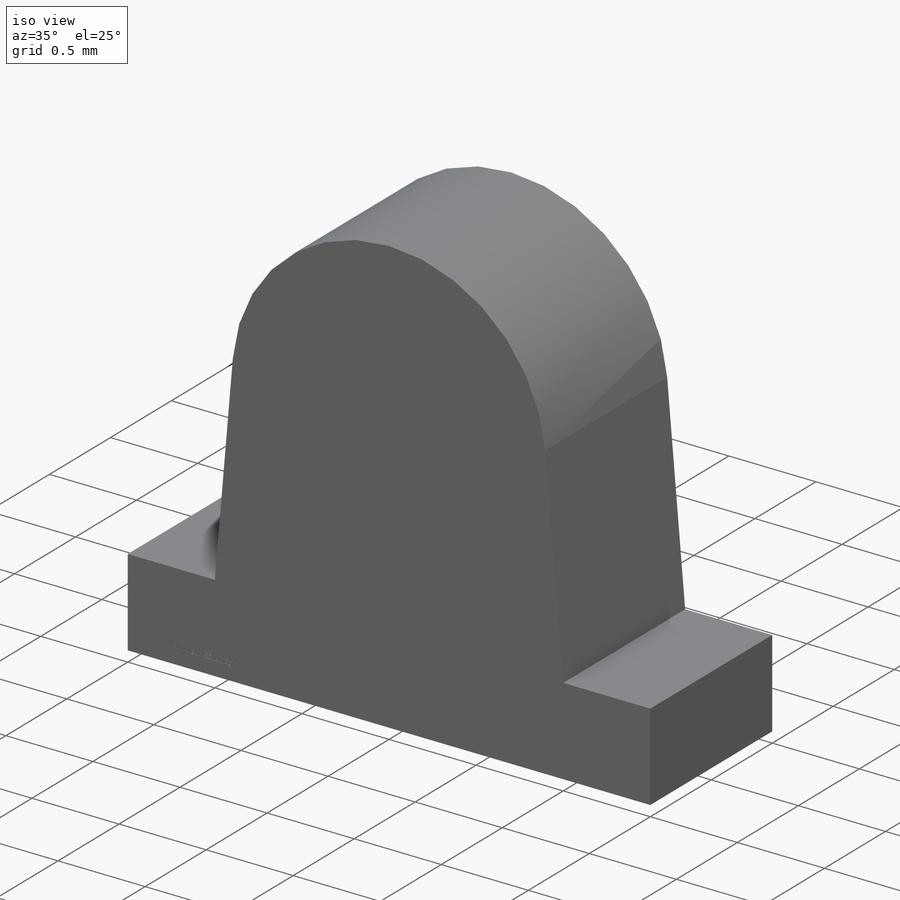
[diagram: iso view]
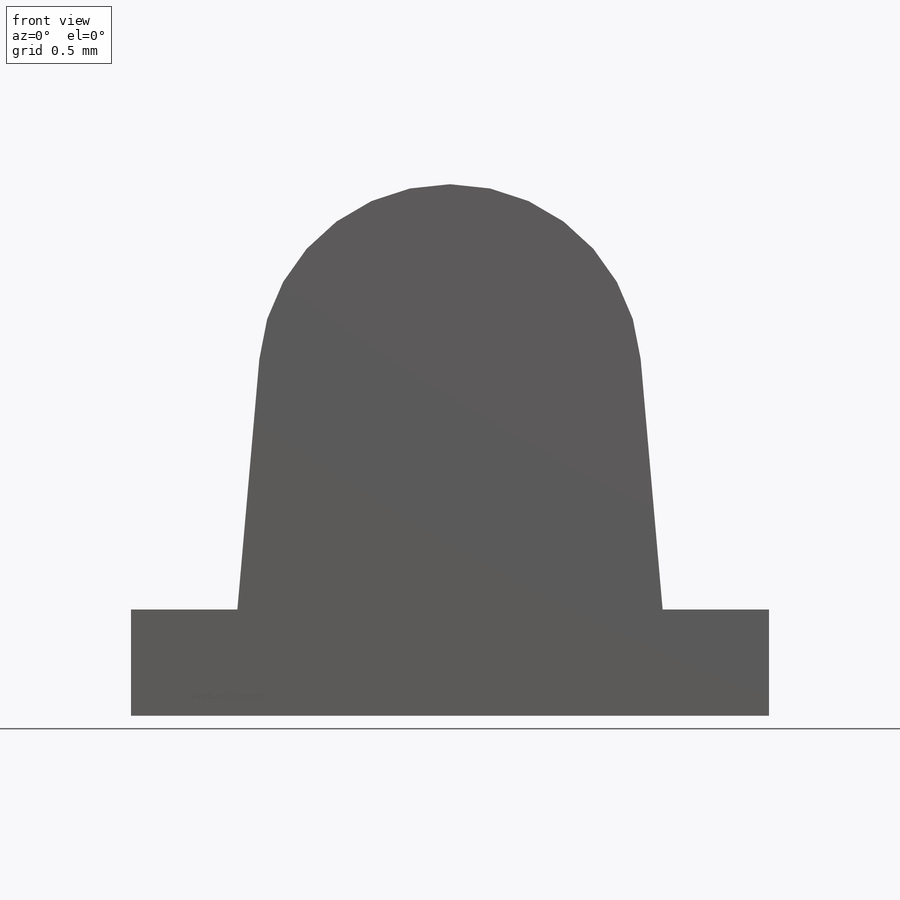
[diagram: front view]
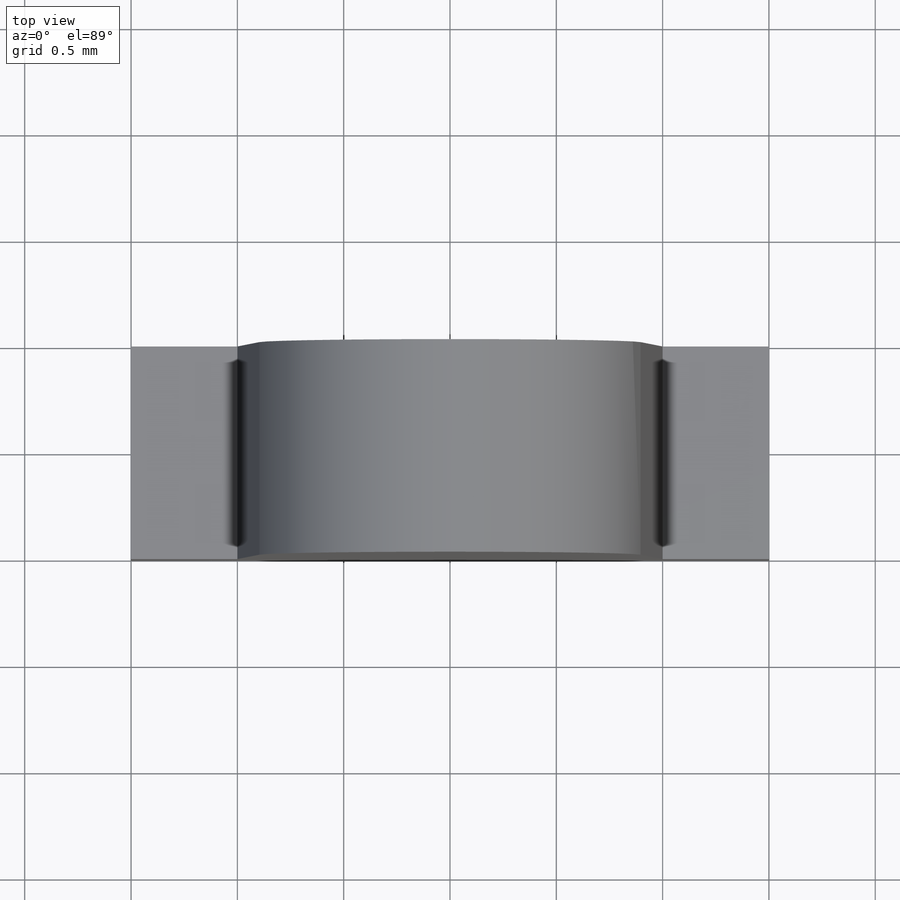
[diagram: top view]
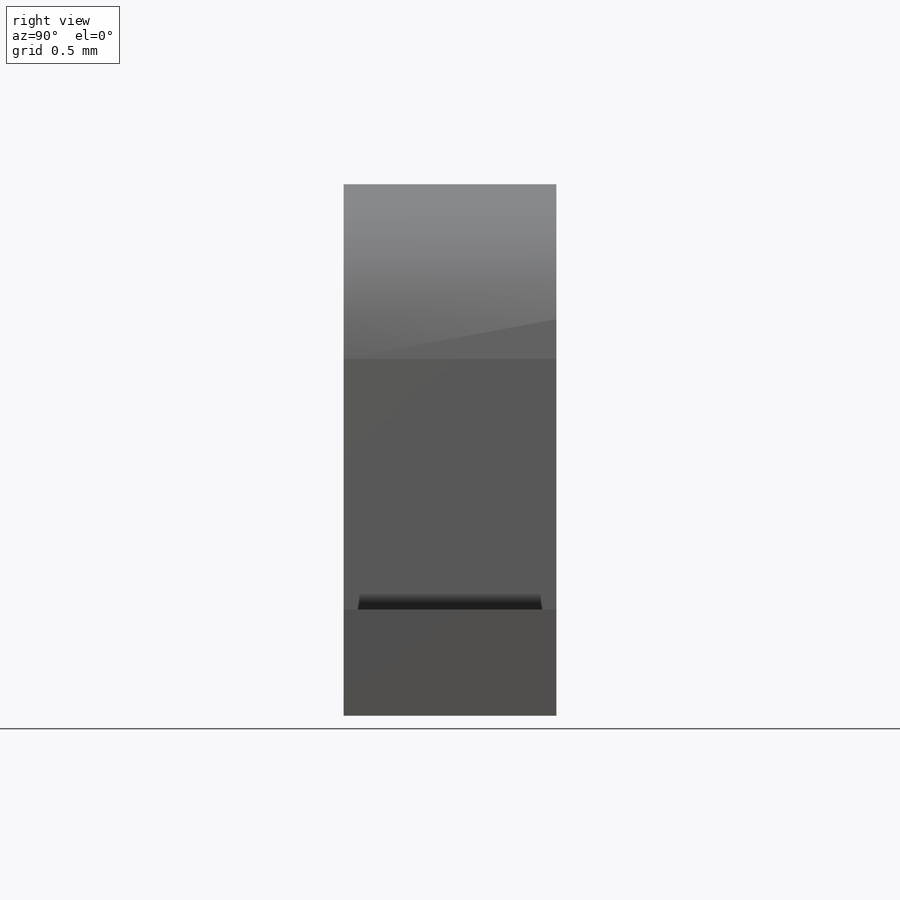
[diagram: right view]
SOLIDWORKS PART (.sldprt)
format: sldprt  version: not decoded by parser v0  size: 623,616 bytes
history: native  units: mm
features: sketch x6, extrude x5, material x1, cut_extrude x1 (+11 scaffold rows collapsed)
feature tree (24):
  scaffold x11  (default folders/planes/origin — collapsed)
  material  "Material <not specified>"
  sketch  "Sketch1"  dims[c1.D4=0.9mm c1.D5=0.9mm c1.D1=0.5mm c1.D2=3.0mm c1.D3=1.0mm c2.D4=0.35mm c2.D5=2.0mm c2.D6=0.03mm c2.D7=0.03mm c2.D8=0.03mm c2.D9=0.3mm c2.D10=0.25mm c2.D3=2.0mm c3.D5=2.5mm]
  extrude  "Extrude1"  Depth=1mm
  extrude  "Extrude2"  [1 undecoded]
  sketch  "Sketch1<7>"  dims[D1=1.0mm]
  sketch  "Sketch5"  dims[c1.D3=0.8mm c1.D4=0.3mm c1.D2=0.2mm c1.D6=0.3mm c1.D1=0.45mm c1.D5=0.35mm c2.D6=0.2mm c2.D7=0.7mm c2.D4=0.58mm c2.D3=0.9mm c3.D4=0.6mm c3.D6=0.6mm c4.D4=0.6mm c4.D1=0.07mm c4.D2=1.0mm c5.D1=0.05mm c5.D2=0.1mm c5.D4=0.15mm c6.D1=0.07mm]
  extrude  "Extrude4"  Depth=0.0001mm
  extrude  "Extrude5"  [1 undecoded]
  sketch  "Sketch5<3>"  dims[D1=0.0001mm D2=0.0001mm]
  sketch  "Sketch8"  dims[D1=0.3mm D2=0.3mm D3=0.3mm]
  extrude  "Extrude6"  Depth=0.0001mm
  sketch  "Sketch7"  dims[D1=0.08mm D2=0.5mm]
  cut_extrude  "Cut-Extrude2"  Depth=0.01mm
decode coverage: 10 of 12 modeling features carry decoded parameters
note: 2 parameter values undecoded
note: suppression state not decoded; provenance and decode notes live in map.json
